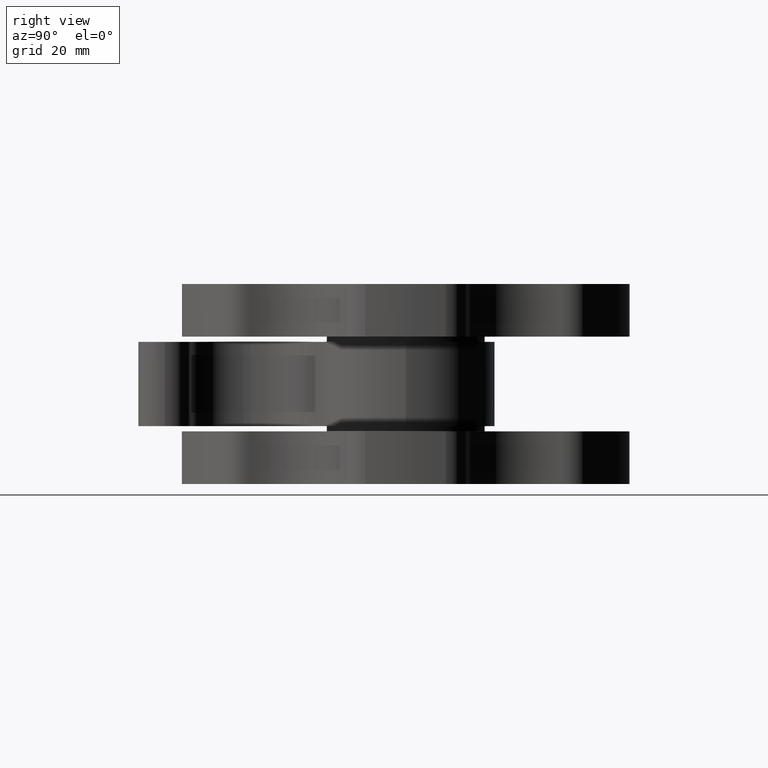
[diagram: clean part render]
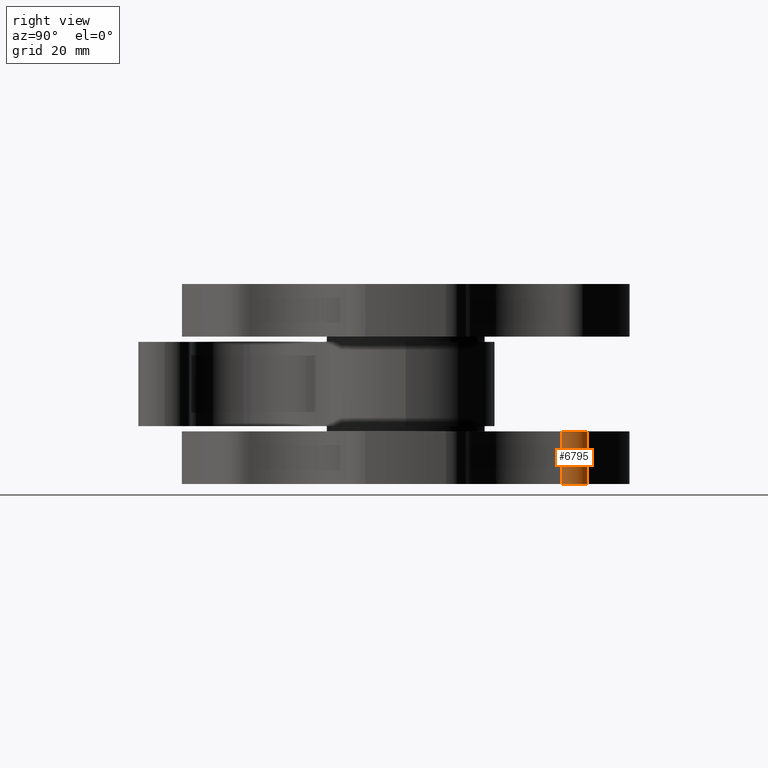
[diagram: same view with one face highlighted and labeled with its STEP entity id]
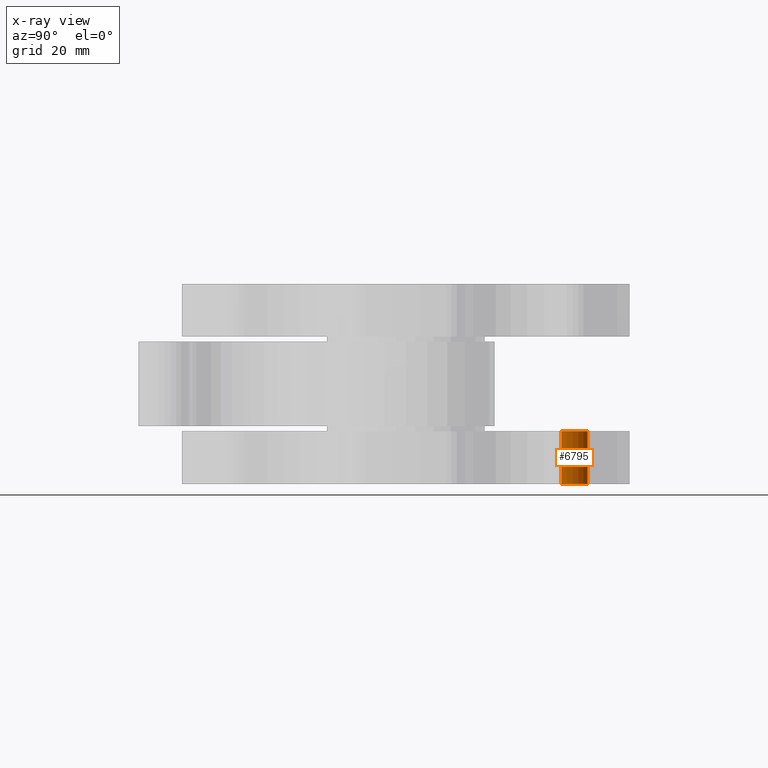
[diagram: x-ray of the same camera — body ghosted, the highlighted face saturated]
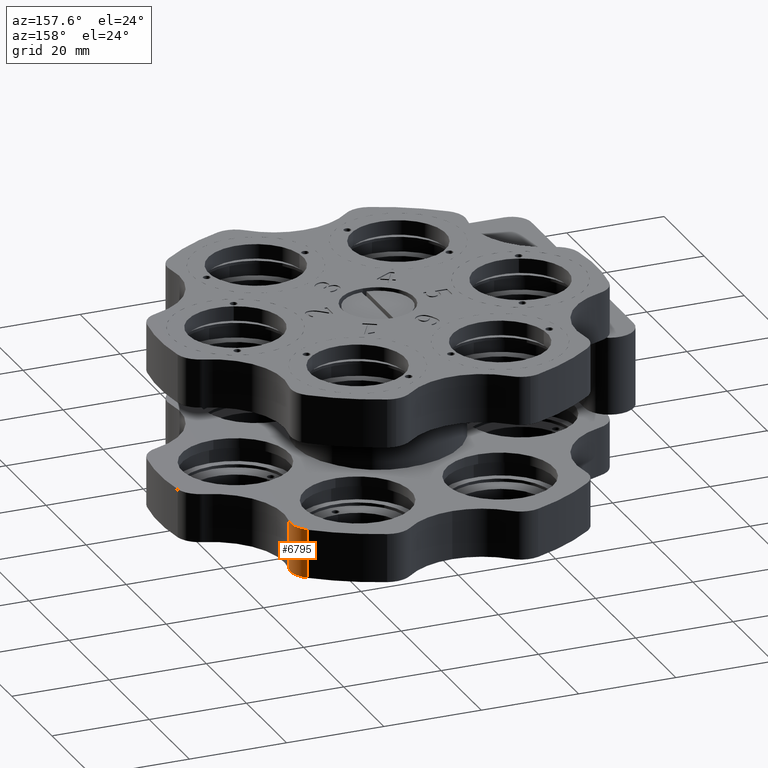
[diagram: same view with one face highlighted and labeled with its STEP entity id]
A machine part, right view. The second image highlights one B-rep face of the part: STEP entity #6795.
The next image is the same camera in x-ray: the body ghosted, the highlighted face saturated — about 0% of this face is hidden behind the body in this view.
A second angle (auxiliary view) of the same face is appended — the face is thin or edge-on in the first view.
In plain terms, the highlighted cylindrical surface (edge-blend (fillet) strip) has radius 5 mm, axis along (0, 0, 1).
Its self-contained STEP definition (entity closure, byte-faithful):
#136 = CARTESIAN_POINT ( 'NONE',  ( 28.80178440267394900, 34.57538452746253900, -17.00000000000000700 ) ) ;
#434 = ORIENTED_EDGE ( 'NONE', *, *, #15919, .T. ) ;
#917 = DIRECTION ( 'NONE',  ( 4.201907058881570000E-017, 1.638974304573501000E-016, 1.000000000000000000 ) ) ;
#1032 = FACE_OUTER_BOUND ( 'NONE', #13601, .T. ) ;
#1203 = EDGE_CURVE ( 'NONE', #26052, #25429, #5792, .T. ) ;
#2565 = VERTEX_POINT ( 'NONE', #136 ) ;
#3363 = VERTEX_POINT ( 'NONE', #6743 ) ;
#5547 = DIRECTION ( 'NONE',  ( -4.201907058881570000E-017, -1.638974304573501000E-016, -1.000000000000000000 ) ) ;
#5792 = CIRCLE ( 'NONE', #23204, 4.999999999999973400 ) ;
#6743 = CARTESIAN_POINT ( 'NONE',  ( 30.45951985098034600, 29.55025635164171000, -17.00000000000000700 ) ) ;
#6795 = ADVANCED_FACE ( 'NONE', ( #1032 ), #12555, .T. ) ;
#8505 = CARTESIAN_POINT ( 'NONE',  ( 30.45951985098034600, 29.55025635164171000, -27.00000000000001100 ) ) ;
#8815 = EDGE_CURVE ( 'NONE', #25429, #3363, #26308, .T. ) ;
#9001 = DIRECTION ( 'NONE',  ( 4.201907058881570000E-017, 1.638974304573501000E-016, 1.000000000000000000 ) ) ;
#9988 = DIRECTION ( 'NONE',  ( -3.469446951953632700E-015, -1.000000000000000000, 0.0000000000000000000 ) ) ;
#11402 = DIRECTION ( 'NONE',  ( 4.201907058881570000E-017, 1.638974304573501000E-016, 1.000000000000000000 ) ) ;
#12555 = CYLINDRICAL_SURFACE ( 'NONE', #19906, 4.999999999999973400 ) ;
#13354 = CARTESIAN_POINT ( 'NONE',  ( 28.80178440267394900, 34.57538452746253200, -27.00000000000001100 ) ) ;
#13551 = DIRECTION ( 'NONE',  ( -4.201907058881570000E-017, -1.638974304573501000E-016, -1.000000000000000000 ) ) ;
#13601 = EDGE_LOOP ( 'NONE', ( #14490, #24960, #22616, #434 ) ) ;
#13605 = CARTESIAN_POINT ( 'NONE',  ( 30.45951985098034600, 29.55025635164171000, -27.00000000000001100 ) ) ;
#14490 = ORIENTED_EDGE ( 'NONE', *, *, #17072, .T. ) ;
#15919 = EDGE_CURVE ( 'NONE', #26052, #2565, #26432, .T. ) ;
#17072 = EDGE_CURVE ( 'NONE', #2565, #3363, #24764, .T. ) ;
#18026 = VECTOR ( 'NONE', #11402, 1000.000000000000000 ) ;
#18617 = CARTESIAN_POINT ( 'NONE',  ( 28.80178440267394900, 34.57538452746253200, -27.00000000000001100 ) ) ;
#19906 = AXIS2_PLACEMENT_3D ( 'NONE', #23167, #9001, #25216 ) ;
#21847 = DIRECTION ( 'NONE',  ( -3.469446951953632700E-015, -1.000000000000000000, 0.0000000000000000000 ) ) ;
#22616 = ORIENTED_EDGE ( 'NONE', *, *, #1203, .F. ) ;
#23167 = CARTESIAN_POINT ( 'NONE',  ( 25.60158613571020700, 30.73367513552227600, -27.00000000000001100 ) ) ;
#23204 = AXIS2_PLACEMENT_3D ( 'NONE', #24142, #5547, #9988 ) ;
#24142 = CARTESIAN_POINT ( 'NONE',  ( 25.60158613571020700, 30.73367513552227600, -27.00000000000001100 ) ) ;
#24764 = CIRCLE ( 'NONE', #25168, 4.999999999999973400 ) ;
#24960 = ORIENTED_EDGE ( 'NONE', *, *, #8815, .F. ) ;
#25157 = VECTOR ( 'NONE', #917, 1000.000000000000000 ) ;
#25168 = AXIS2_PLACEMENT_3D ( 'NONE', #25783, #13551, #21847 ) ;
#25216 = DIRECTION ( 'NONE',  ( 0.0000000000000000000, -1.000000000000000000, 0.0000000000000000000 ) ) ;
#25429 = VERTEX_POINT ( 'NONE', #8505 ) ;
#25783 = CARTESIAN_POINT ( 'NONE',  ( 25.60158613571020700, 30.73367513552227900, -17.00000000000000700 ) ) ;
#26052 = VERTEX_POINT ( 'NONE', #13354 ) ;
#26308 = LINE ( 'NONE', #13605, #18026 ) ;
#26432 = LINE ( 'NONE', #18617, #25157 ) ;